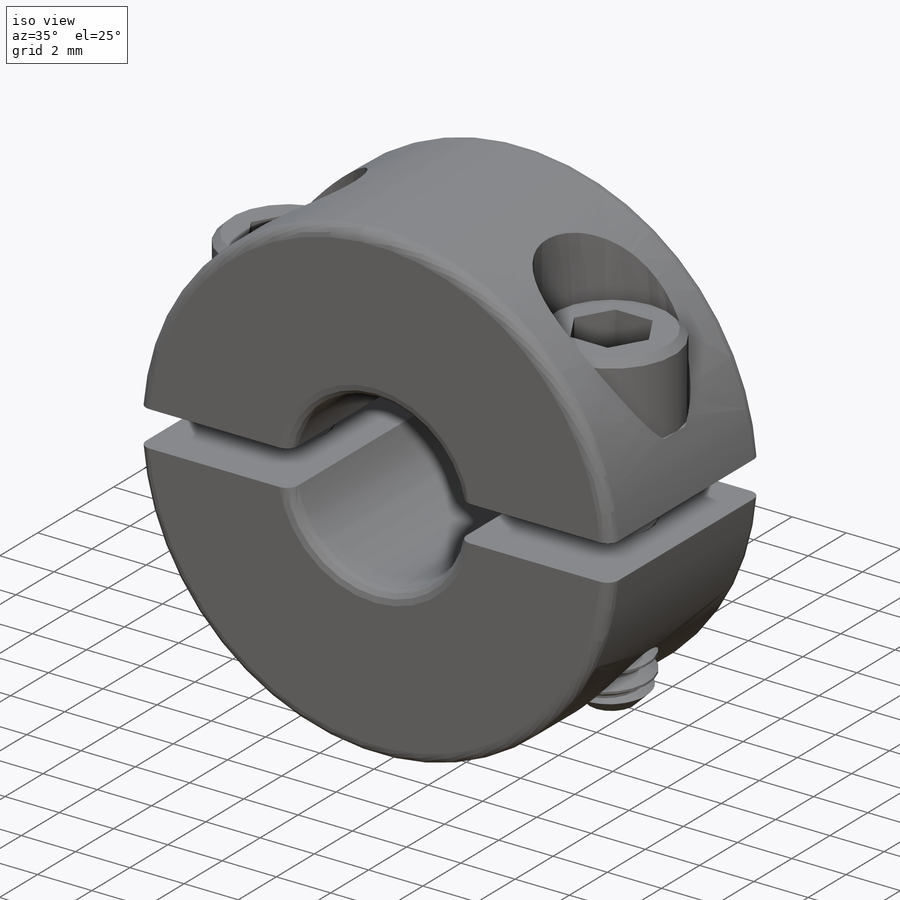
[diagram: iso view]
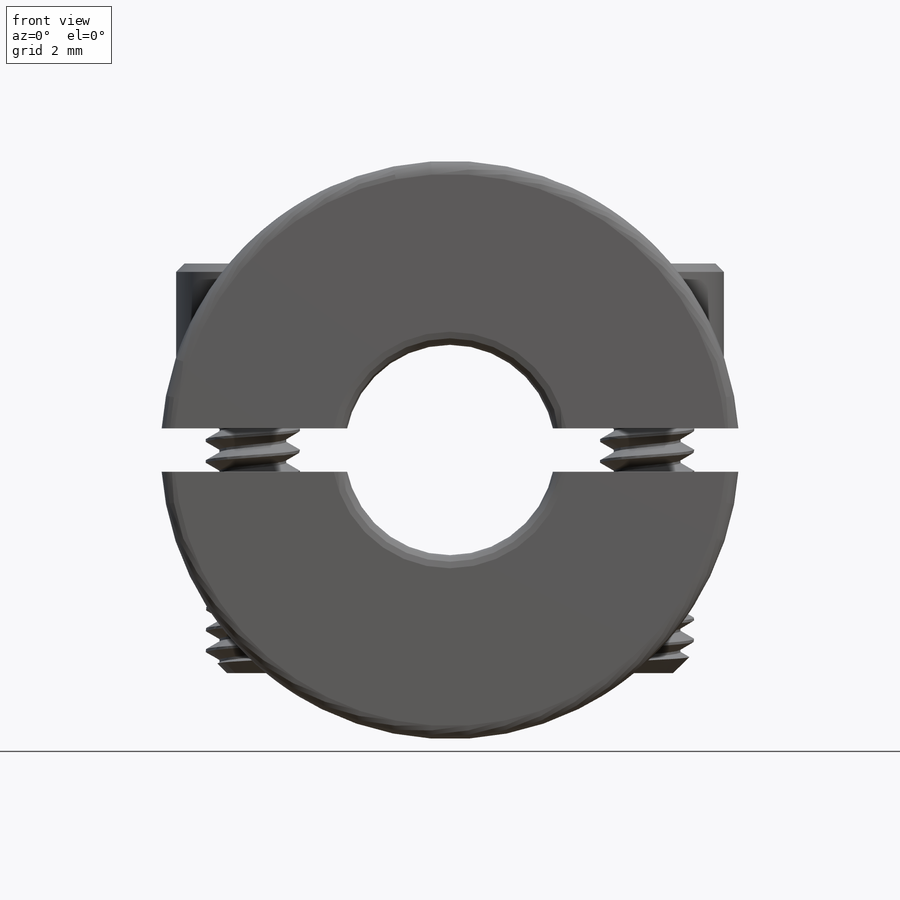
[diagram: front view]
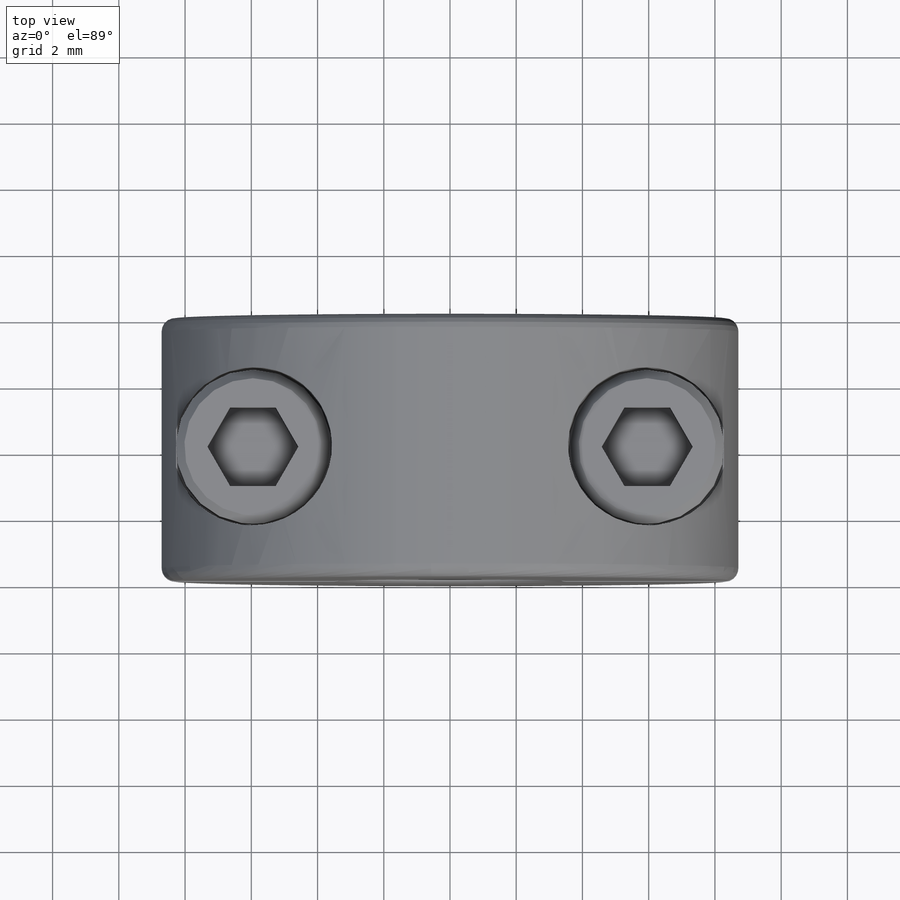
[diagram: top view]
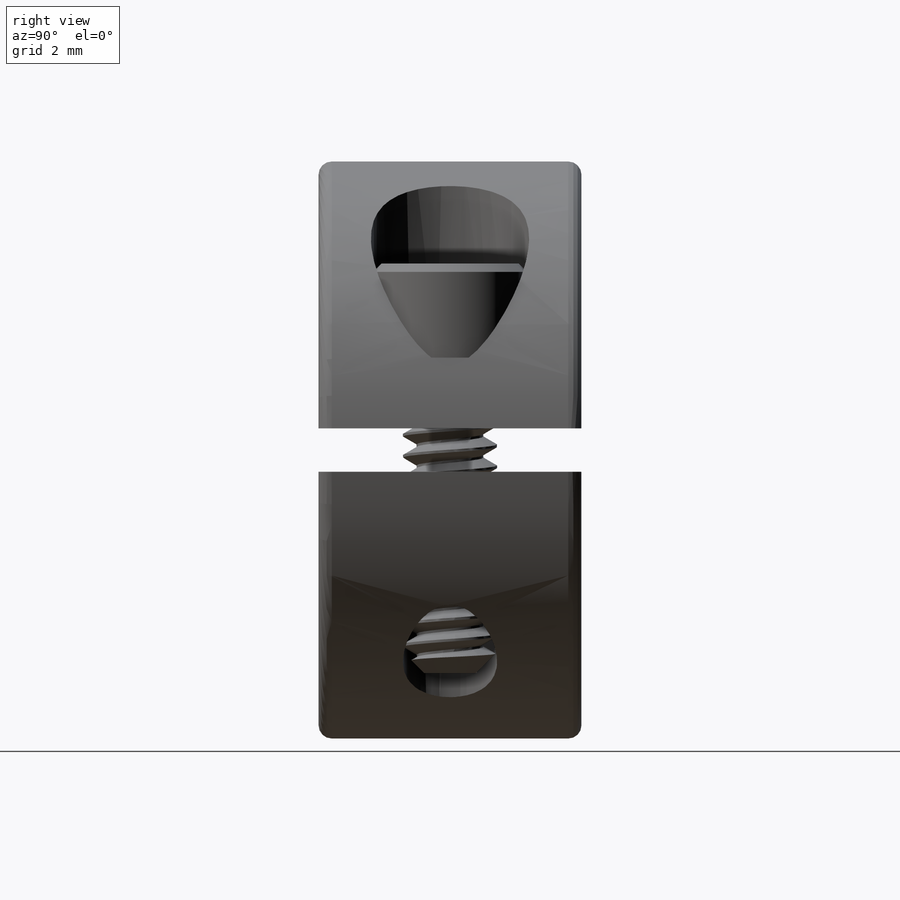
[diagram: right view]
SOLIDWORKS PART (.sldprt)
format: sldprt  version: not decoded by parser v0  size: 1,056,256 bytes
history: native  units: mm
features: sketch x8, fillet x2, cut_revolve x2, cut_extrude x2, chamfer x2, material x1, extrude x1, mirror x1, revolve x1, helix x1, sweep x1, pattern_linear x1 (+14 scaffold rows collapsed)
feature tree (37):
  scaffold x14  (default folders/planes/origin — collapsed)
  material  "6061 Alloy"
  sketch  "Sketch1"  dims[Bore Dia=6.35mm OD=17.4625mm Separation=~1.309687mm R=17.2212mm D1=~5.953125mm]
  extrude  "Extrude1"  Depth=7.9375mm Width=7.9375mm
  fillet  "Fillet1"  Radius=0.396875mm
  fillet  "Fillet2"  Radius=0.396875mm
  sketch  "Sketch2"  dims[D1=0.1905mm D2=0.1905mm]
  cut_revolve  "Cut-Revolve1"  Angle=360deg
  sketch  "Sketch3"  dims[c1.Set Screw Dia=9.525mm c1.D1=9.525mm c1.D2=15.875mm c2.D1=9.525mm c2.D2=60.325mm c2.D3=1.27mm c3.D2=15.875mm c3.D4=14.2875mm c3.D3=2.1336mm c3.Screw Dia=2.8448mm c3.D5=2.54mm c3.D1=4.7752mm c4.D2=94.8944mm]
  cut_revolve  "Cut-Revolve2"  Angle=360deg
  mirror  "Mirror1"
  sketch  "Sketch8"
  cut_extrude  "Cut-Extrude3"  [1 undecoded]
  sketch  "Sketch4"  dims[c1.Head Ht=~17.30375mm c1.D2=2.54mm c1.Screw Lg=28.575mm c2.Head Ht=2.8448mm c2.D1=28.575mm c2.Screw Lg=9.525mm c2.Head Dia=4.6482mm]
  revolve  "Revolve1"  Angle=360deg
  sketch  "Sketch5"  dims[Hex=~2.38125mm]
  cut_extrude  "Cut-Extrude2"  Depth=2.1336mm
  chamfer  "Chamfer1"  Distance=0.254mm Angle=45deg
  sketch  "Sketch6"
  helix  "Helix/Spiral1"  Pitch=9.525mm Height=9.525mm
  sketch  "Sketch7"  dims[D1=0.635mm D2=~0.079375mm]
  chamfer  "Chamfer2"  Distance=0.635mm Angle=45deg
  sweep  "Cut-Sweep1"
  pattern_linear  "LPattern1"  Count1=2 Count2=1 Spacing1=11.90625mm Spacing2=3.175mm
decode coverage: 17 of 22 modeling features carry decoded parameters
note: ~ marks probable driven/reference dimensions
note: 1 parameter value undecoded
note: suppression state not decoded; provenance and decode notes live in map.json
